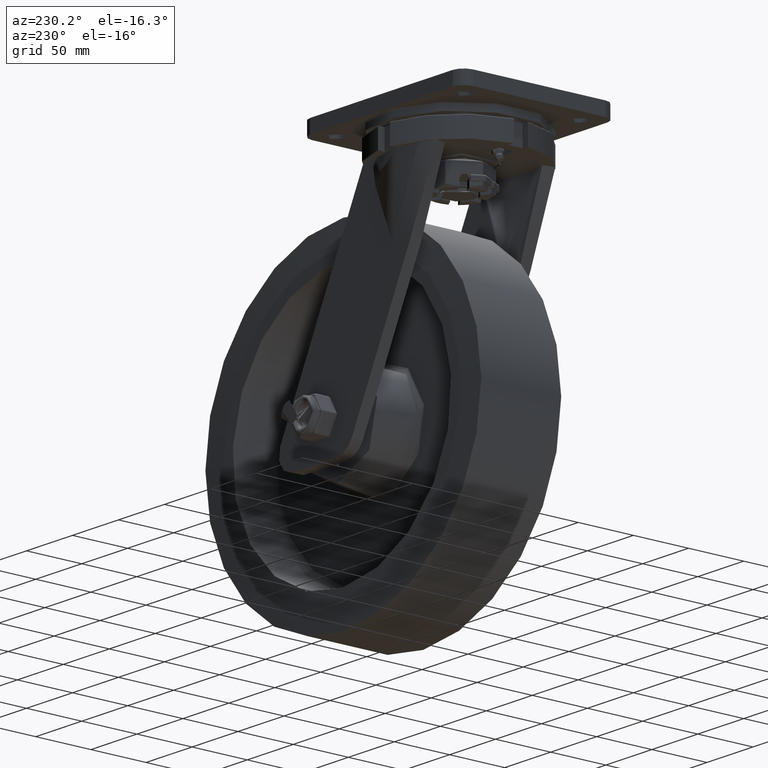
[diagram: clean part render]
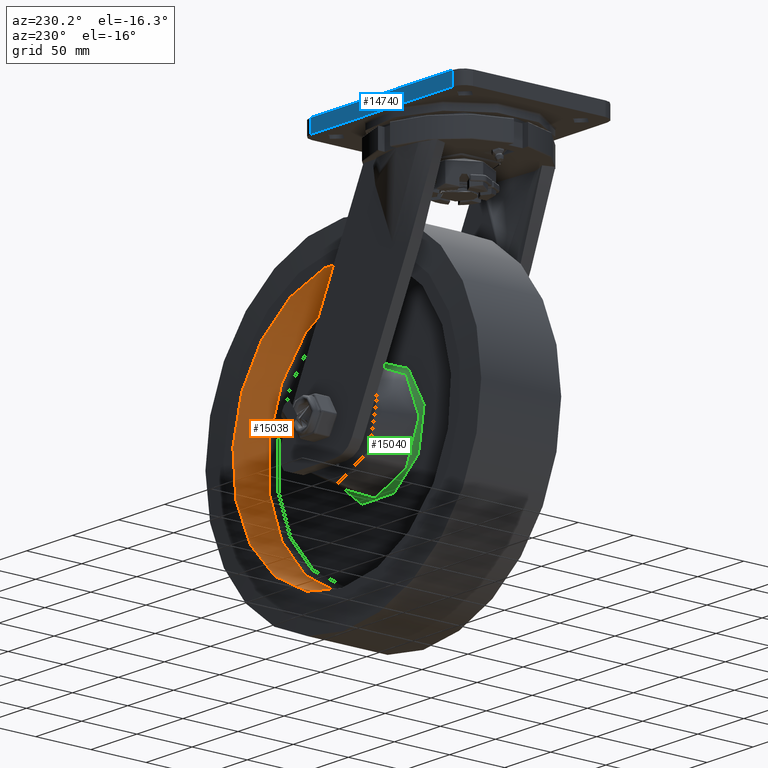
[diagram: same view with three faces highlighted in distinct colors, each labeled with its STEP entity id]
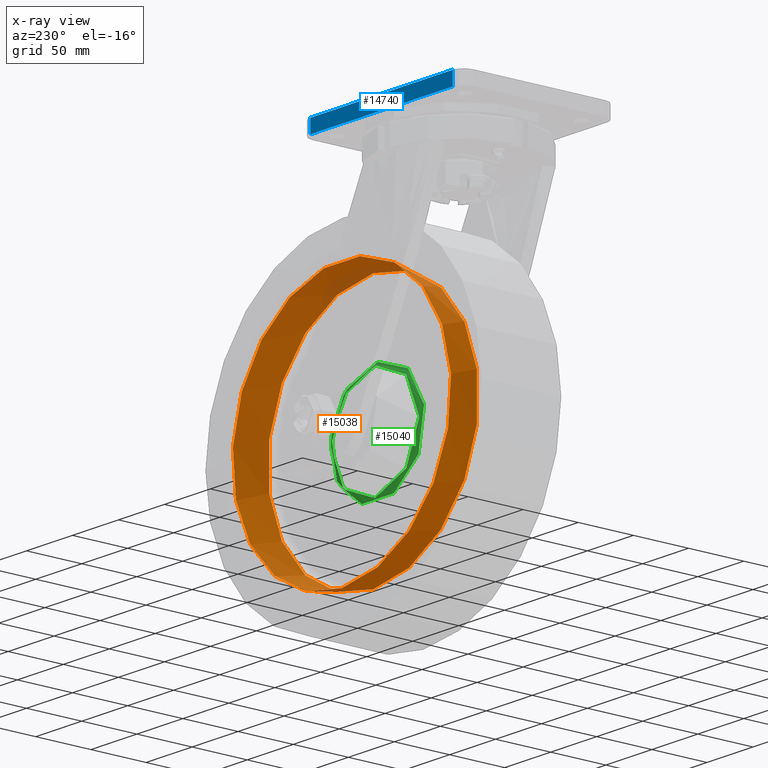
[diagram: x-ray of the same camera — body ghosted, the three highlighted faces saturated]
A machine part, auxiliary view with three faces highlighted in distinct colors.
The next image is the same camera in x-ray (body ghosted, the three faces saturated) — at least one of them is partly hidden behind the body in this view.
Their STEP definitions:

[orange] entity #15038 — the highlighted conical surface has half-angle 8.746 deg.
#317=CONICAL_SURFACE('',#16337,116.82613185221,0.152649328395264);
#1392=FACE_OUTER_BOUND('',#2311,.T.);
#2311=EDGE_LOOP('',(#11567,#11568,#11569,#11570,#11571));
#3177=CIRCLE('',#16338,114.65226370442);
#3178=CIRCLE('',#16339,114.65226370442);
#3179=CIRCLE('',#16340,119.);
#4641=LINE('',#44156,#5488);
#5488=VECTOR('',#18673,116.82613185221);
#6580=VERTEX_POINT('',#44151);
#6581=VERTEX_POINT('',#44152);
#6582=VERTEX_POINT('',#44155);
#8388=EDGE_CURVE('',#6580,#6581,#3177,.T.);
#8389=EDGE_CURVE('',#6581,#6580,#3178,.T.);
#8390=EDGE_CURVE('',#6580,#6582,#4641,.T.);
#8391=EDGE_CURVE('',#6582,#6582,#3179,.T.);
#11567=ORIENTED_EDGE('',*,*,#8388,.T.);
#11568=ORIENTED_EDGE('',*,*,#8389,.T.);
#11569=ORIENTED_EDGE('',*,*,#8390,.T.);
#11570=ORIENTED_EDGE('',*,*,#8391,.T.);
#11571=ORIENTED_EDGE('',*,*,#8390,.F.);
#15038=ADVANCED_FACE('',(#1392),#317,.F.);
#16337=AXIS2_PLACEMENT_3D('',#44150,#18667,#18668);
#16338=AXIS2_PLACEMENT_3D('',#44153,#18669,#18670);
#16339=AXIS2_PLACEMENT_3D('',#44154,#18671,#18672);
#16340=AXIS2_PLACEMENT_3D('',#44157,#18674,#18675);
#18667=DIRECTION('center_axis',(-3.49148336110938E-15,1.,0.));
#18668=DIRECTION('ref_axis',(0.,0.,1.));
#18669=DIRECTION('center_axis',(3.49148336110938E-15,-1.,0.));
#18670=DIRECTION('ref_axis',(0.,0.,1.));
#18671=DIRECTION('center_axis',(3.49148336110938E-15,-1.,0.));
#18672=DIRECTION('ref_axis',(0.,0.,1.));
#18673=DIRECTION('',(-3.46950497133696E-15,0.988371697650617,-0.15205718425394));
#18674=DIRECTION('center_axis',(-3.49148336110938E-15,1.,0.));
#18675=DIRECTION('ref_axis',(-1.,-3.49148336110938E-15,0.));
#44150=CARTESIAN_POINT('Origin',(-7.46565731005416E-14,23.3698570393653,
0.));
#44151=CARTESIAN_POINT('',(-3.93622668394497E-14,9.2397140787304,-114.65226370442));
#44152=CARTESIAN_POINT('',(-3.93622668394497E-14,9.2397140787304,114.65226370442));
#44153=CARTESIAN_POINT('Origin',(-2.53214140633881E-14,9.2397140787304,
0.));
#44154=CARTESIAN_POINT('Origin',(-2.53214140633881E-14,9.2397140787304,
0.));
#44155=CARTESIAN_POINT('',(-1.38565029047548E-13,37.5,-119.));
#44156=CARTESIAN_POINT('',(-8.89636479434992E-14,23.3698570393653,-116.82613185221));
#44157=CARTESIAN_POINT('Origin',(-1.23991732137695E-13,37.5,0.));

[blue] entity #14740 — the highlighted planar face has unit normal (0, 1, 0).
#483=PLANE('',#15848);
#1094=FACE_OUTER_BOUND('',#1997,.T.);
#1997=EDGE_LOOP('',(#10075,#10076,#10077,#10078));
#4354=LINE('',#27110,#5201);
#4360=LINE('',#27129,#5207);
#4361=LINE('',#27132,#5208);
#4362=LINE('',#27133,#5209);
#5201=VECTOR('',#17386,1000.);
#5207=VECTOR('',#17408,1000.);
#5208=VECTOR('',#17411,1000.);
#5209=VECTOR('',#17412,1000.);
#6116=VERTEX_POINT('',#27107);
#6117=VERTEX_POINT('',#27109);
#6122=VERTEX_POINT('',#27127);
#6123=VERTEX_POINT('',#27131);
#7638=EDGE_CURVE('',#6117,#6116,#4354,.T.);
#7647=EDGE_CURVE('',#6117,#6122,#4360,.T.);
#7648=EDGE_CURVE('',#6123,#6122,#4361,.T.);
#7649=EDGE_CURVE('',#6116,#6123,#4362,.T.);
#10075=ORIENTED_EDGE('',*,*,#7648,.T.);
#10076=ORIENTED_EDGE('',*,*,#7647,.F.);
#10077=ORIENTED_EDGE('',*,*,#7638,.T.);
#10078=ORIENTED_EDGE('',*,*,#7649,.T.);
#14740=ADVANCED_FACE('',(#1094),#483,.T.);
#15848=AXIS2_PLACEMENT_3D('',#27130,#17409,#17410);
#17386=DIRECTION('',(1.,0.,0.));
#17408=DIRECTION('',(0.,0.,-1.));
#17409=DIRECTION('center_axis',(0.,1.,0.));
#17410=DIRECTION('ref_axis',(1.,0.,0.));
#17411=DIRECTION('',(-1.,0.,0.));
#17412=DIRECTION('',(0.,0.,-1.));
#27107=CARTESIAN_POINT('',(77.5,70.,0.));
#27109=CARTESIAN_POINT('',(-77.5,70.,0.));
#27110=CARTESIAN_POINT('',(-77.5,70.,0.));
#27127=CARTESIAN_POINT('',(-77.5,70.,-12.));
#27129=CARTESIAN_POINT('',(-77.5,70.,0.));
#27130=CARTESIAN_POINT('Origin',(0.,70.,0.));
#27131=CARTESIAN_POINT('',(77.5,70.,-12.));
#27132=CARTESIAN_POINT('',(-77.5,70.,-12.));
#27133=CARTESIAN_POINT('',(77.5,70.,0.));

[green] entity #15040 — the highlighted toroidal blend (fillet) surface has major radius 51.1121 mm and minor (blend) radius 3 mm.
#1012=TOROIDAL_SURFACE('',#16344,51.1121303075644,3.);
#1394=FACE_OUTER_BOUND('',#2313,.T.);
#2313=EDGE_LOOP('',(#11577,#11578,#11579,#11580,#11581));
#3158=CIRCLE('',#16311,48.1406534880311);
#3160=CIRCLE('',#16313,48.1406534880311);
#3182=CIRCLE('',#16345,51.1121303075644);
#3183=CIRCLE('',#16346,3.);
#6563=VERTEX_POINT('',#44101);
#6564=VERTEX_POINT('',#44102);
#6584=VERTEX_POINT('',#44163);
#8363=EDGE_CURVE('',#6563,#6564,#3158,.T.);
#8366=EDGE_CURVE('',#6564,#6563,#3160,.T.);
#8394=EDGE_CURVE('',#6584,#6584,#3182,.T.);
#8395=EDGE_CURVE('',#6584,#6564,#3183,.T.);
#11577=ORIENTED_EDGE('',*,*,#8394,.F.);
#11578=ORIENTED_EDGE('',*,*,#8395,.T.);
#11579=ORIENTED_EDGE('',*,*,#8366,.T.);
#11580=ORIENTED_EDGE('',*,*,#8363,.T.);
#11581=ORIENTED_EDGE('',*,*,#8395,.F.);
#15040=ADVANCED_FACE('',(#1394),#1012,.F.);
#16311=AXIS2_PLACEMENT_3D('',#44103,#18609,#18610);
#16313=AXIS2_PLACEMENT_3D('',#44107,#18614,#18615);
#16344=AXIS2_PLACEMENT_3D('',#44162,#18682,#18683);
#16345=AXIS2_PLACEMENT_3D('',#44164,#18684,#18685);
#16346=AXIS2_PLACEMENT_3D('',#44165,#18686,#18687);
#18609=DIRECTION('center_axis',(3.49148336110938E-15,-1.,0.));
#18610=DIRECTION('ref_axis',(0.,0.,1.));
#18614=DIRECTION('center_axis',(3.49148336110938E-15,-1.,0.));
#18615=DIRECTION('ref_axis',(0.,0.,1.));
#18682=DIRECTION('center_axis',(3.49148336110938E-15,-1.,0.));
#18683=DIRECTION('ref_axis',(0.,0.,-1.));
#18684=DIRECTION('center_axis',(3.49148336110938E-15,-1.,0.));
#18685=DIRECTION('ref_axis',(0.,0.,1.));
#18686=DIRECTION('center_axis',(1.,3.49148336110938E-15,1.22464679914735E-16));
#18687=DIRECTION('ref_axis',(-1.22464679914735E-16,0.,1.));
#44101=CARTESIAN_POINT('',(-2.54475496673044E-14,7.58729488617599,-48.1406534880311));
#44102=CARTESIAN_POINT('',(-2.54475496673044E-14,7.58729488617599,48.1406534880311));
#44103=CARTESIAN_POINT('Origin',(-1.95520199470065E-14,7.58729488617599,
0.));
#44107=CARTESIAN_POINT('Origin',(-1.95520199470065E-14,7.58729488617599,
0.));
#44162=CARTESIAN_POINT('Origin',(-2.0992972984968E-14,8.00000000000006,
0.));
#44163=CARTESIAN_POINT('',(-1.67779535795159E-14,5.00000000000005,51.1121303075644));
#44164=CARTESIAN_POINT('Origin',(-1.05185229016399E-14,5.00000000000005,
0.));
#44165=CARTESIAN_POINT('Origin',(-2.72524036628441E-14,8.00000000000006,
51.1121303075644));